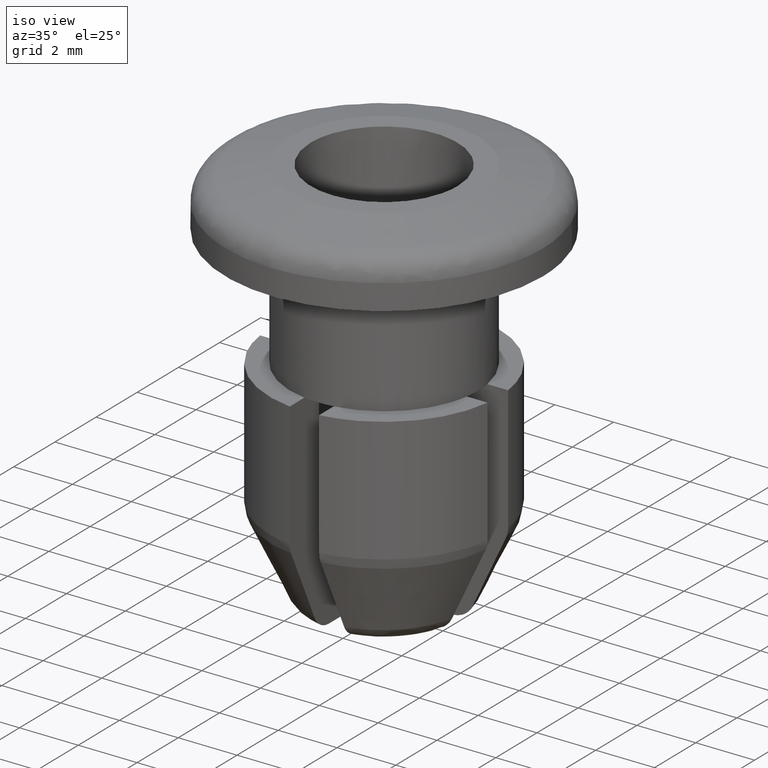
[diagram: clean part render]
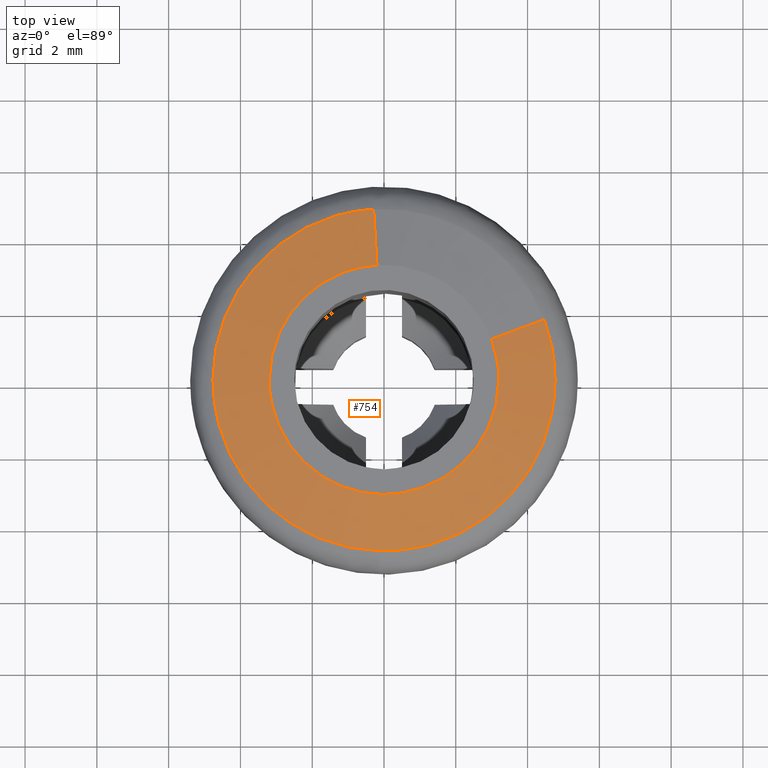
[diagram: tour spotlight — one face highlighted and labeled with its STEP entity id]
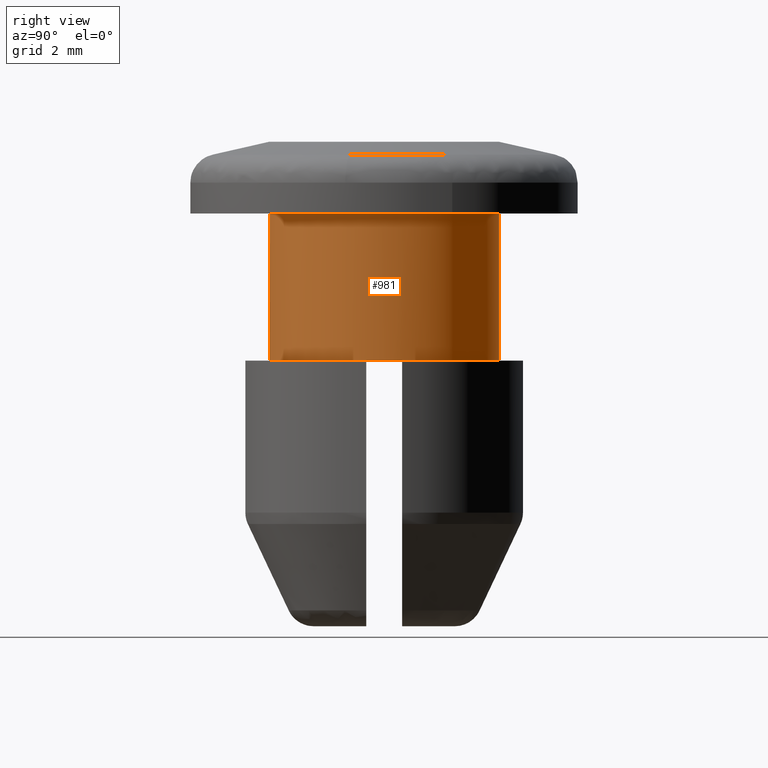
[diagram: tour spotlight — one face highlighted and labeled with its STEP entity id]
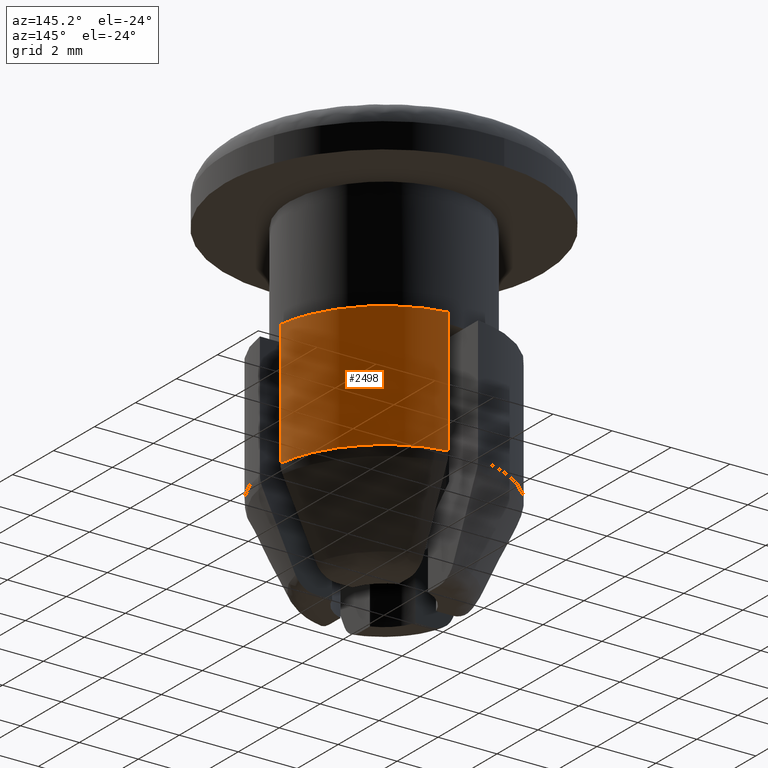
[diagram: tour spotlight — one face highlighted and labeled with its STEP entity id]
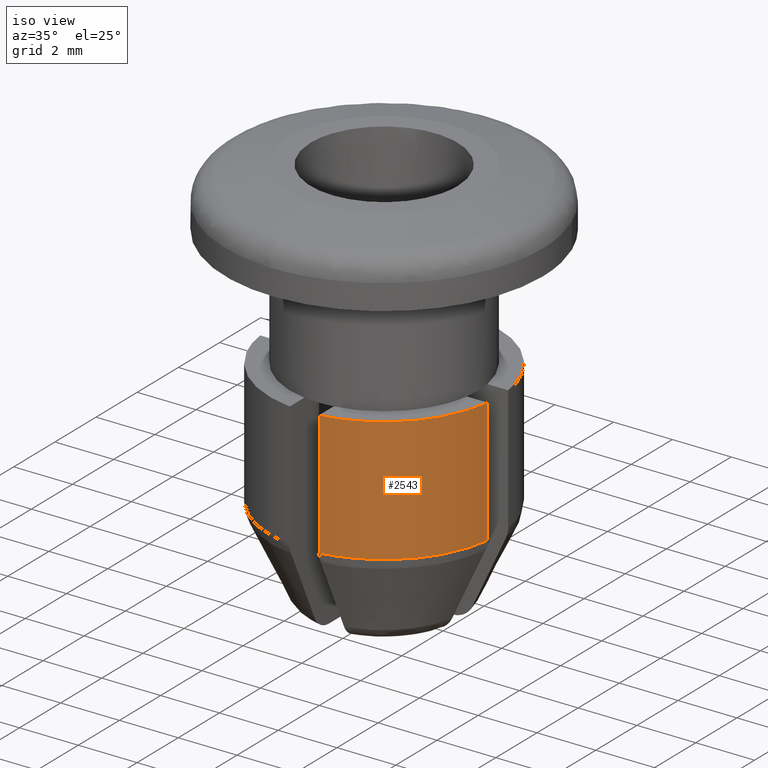
[diagram: tour spotlight — one face highlighted and labeled with its STEP entity id]
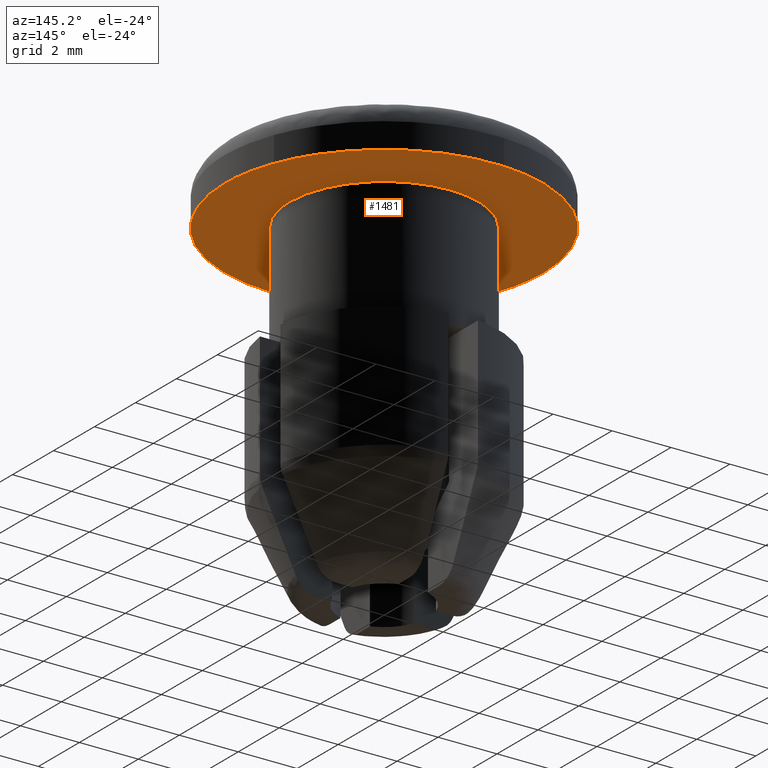
[diagram: tour spotlight — one face highlighted and labeled with its STEP entity id]
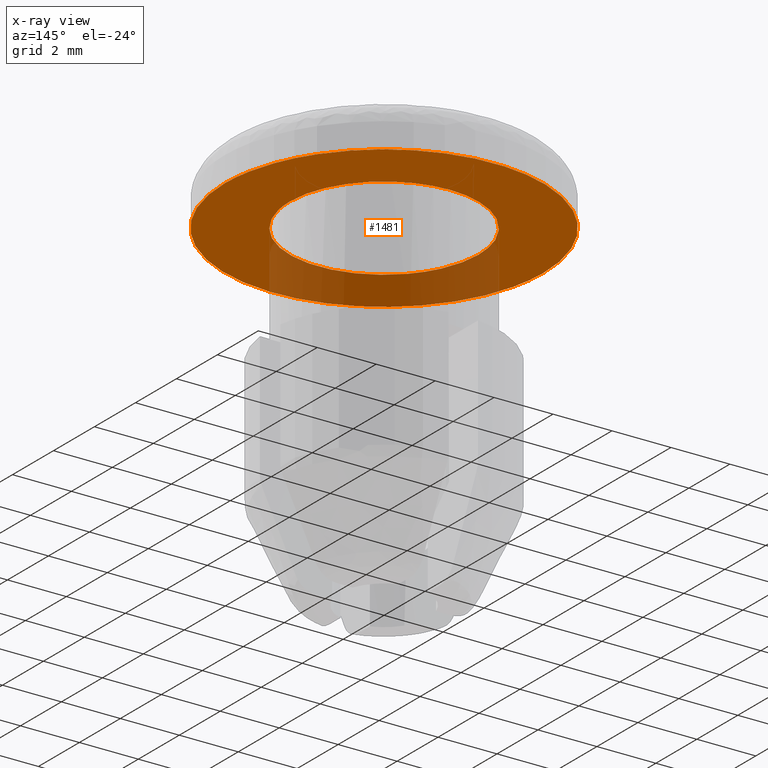
[diagram: x-ray of the same camera — body ghosted, this tour face saturated]
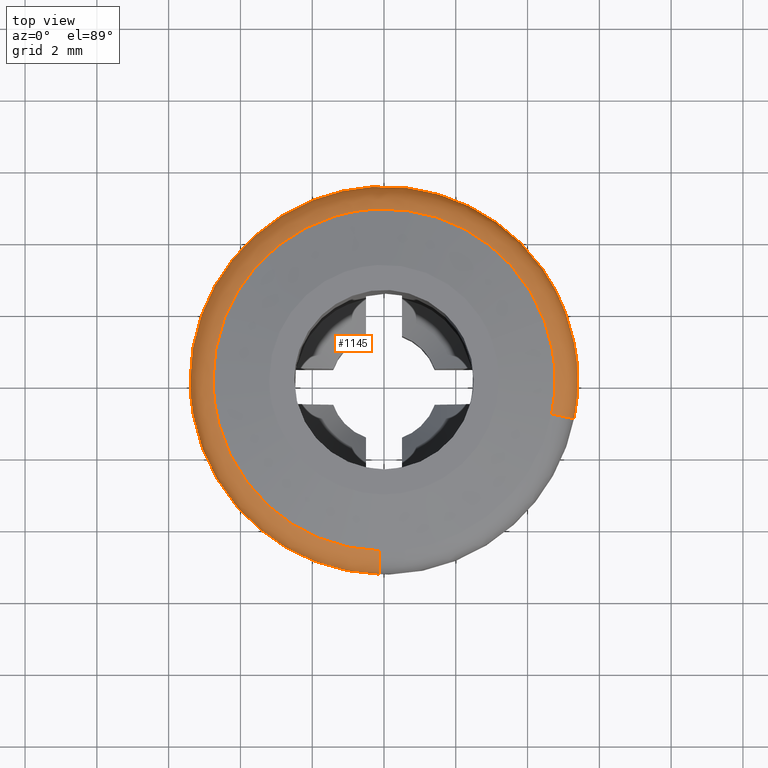
[diagram: tour spotlight — one face highlighted and labeled with its STEP entity id]
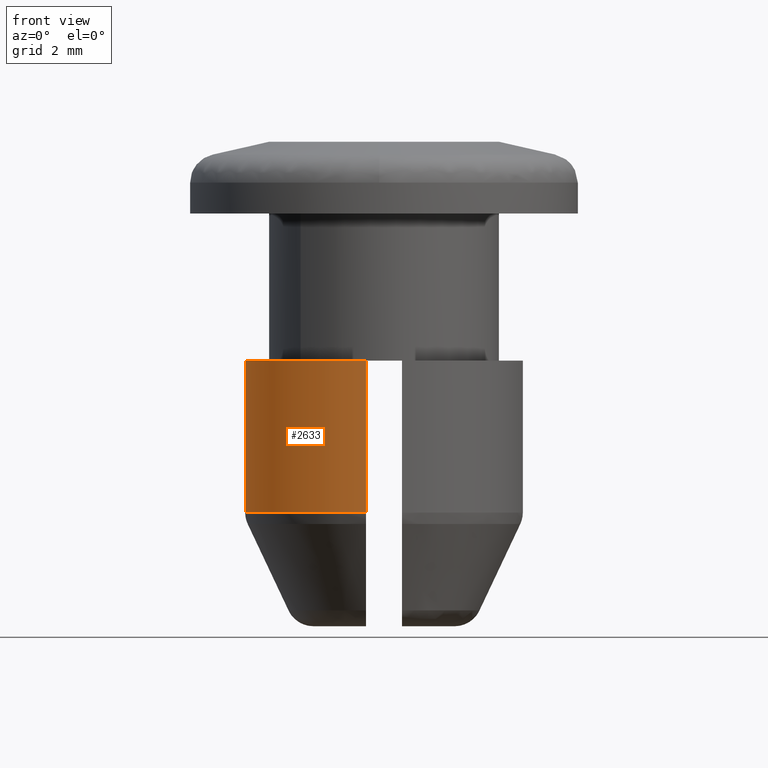
[diagram: tour spotlight — one face highlighted and labeled with its STEP entity id]
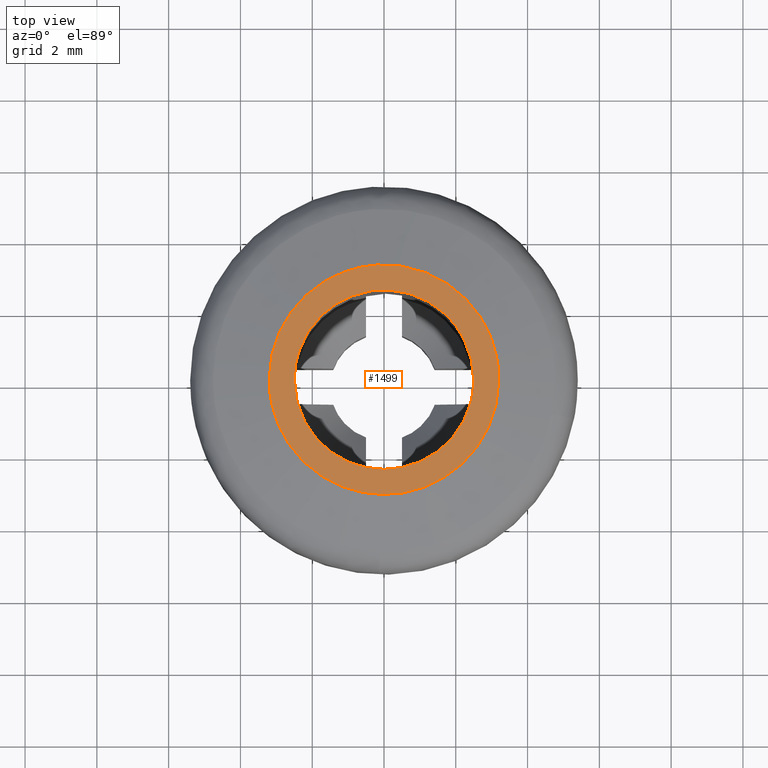
[diagram: tour spotlight — one face highlighted and labeled with its STEP entity id]
A machine part: a face-by-face anatomy tour. The part has 56 B-rep faces; the first image is the clean iso view, then the 8 largest visible faces are spotlighted one at a time (largest first), each with its STEP entity span.

Face 1 — top view, entity #754. In plain terms, the highlighted face is a freeform B-spline surface patch.
Definition (entity closure, byte-faithful):
#588=CARTESIAN_POINT('',(2.959032740807782,1.111420429589253,0.008905034524213));
#589=CARTESIAN_POINT('',(3.125991545662793,0.666911262059646,0.008905034524213));
#590=CARTESIAN_POINT('',(3.154979230995207,0.192966796288025,0.008905034524213));
#591=CARTESIAN_POINT('',(3.347946027283231,-2.962012434707182,0.008905034524213));
#592=CARTESIAN_POINT('',(0.192966796288025,-3.154979230995207,0.008905034524213));
#593=CARTESIAN_POINT('',(-2.962012434707182,-3.347946027283231,0.008905034524213));
#594=CARTESIAN_POINT('',(-3.154979230995207,-0.192966796288025,0.008905034524213));
#595=CARTESIAN_POINT('',(-3.347946027283231,2.962012434707182,0.008905034524213));
#596=CARTESIAN_POINT('',(-0.192966796288025,3.154979230995207,0.008905034524213));
#597=CARTESIAN_POINT('',(4.498270282245640,1.689562072279477,-0.365329041355827));
#598=CARTESIAN_POINT('',(4.752078163409377,1.013826940691061,-0.365329041355827));
#599=CARTESIAN_POINT('',(4.796144740194292,0.293344778931245,-0.365329041355827));
#600=CARTESIAN_POINT('',(5.089489519125537,-4.502799961263047,-0.365329041355827));
#601=CARTESIAN_POINT('',(0.293344778931245,-4.796144740194292,-0.365329041355827));
#602=CARTESIAN_POINT('',(-4.502799961263047,-5.089489519125537,-0.365329041355827));
#603=CARTESIAN_POINT('',(-4.796144740194292,-0.293344778931245,-0.365329041355827));
#604=CARTESIAN_POINT('',(-5.089489519125537,4.502799961263047,-0.365329041355827));
#605=CARTESIAN_POINT('',(-0.293344778931245,4.796144740194292,-0.365329041355827));
#613=(BOUNDED_SURFACE()B_SPLINE_SURFACE(2,1,((#588,#597),(#589,#598),(#590,#599),(#591,#600),(#592,#601),(#593,#602),(#594,#603),(#595,#604),(#596,#605)),.UNSPECIFIED.,.F.,.F.,.U.)B_SPLINE_SURFACE_WITH_KNOTS((3,2,2,2,3),(2,2),(0.0,1.592272467914259,9.553634807485555,17.514997147056850,25.476359486628141),(0.0,1.0),.UNSPECIFIED.)GEOMETRIC_REPRESENTATION_ITEM()RATIONAL_B_SPLINE_SURFACE(((0.906274169979695,0.906274169979695),(0.941421356237309,0.941421356237309),(1.0,1.0),(0.707106781186548,0.707106781186548),(1.0,1.0),(0.707106781186548,0.707106781186548),(1.0,1.0),(0.707106781186548,0.707106781186548),(1.0,1.0)))REPRESENTATION_ITEM('')SURFACE());
#614=CARTESIAN_POINT('',(4.460727903092842,1.675461056579439,-0.356201380946647));
#615=VERTEX_POINT('',#614);
#616=CARTESIAN_POINT('',(4.765004006035680,0.0,-0.356201380946426));
#617=VERTEX_POINT('',#616);
#618=CARTESIAN_POINT('',(4.460727903092843,1.675461056579439,-0.356201380946647));
#619=CARTESIAN_POINT('',(4.765004006035681,0.865359922143831,-0.356201380946426));
#620=CARTESIAN_POINT('',(4.765004006035680,0.0,-0.356201380946426));
#628=(BOUNDED_CURVE()B_SPLINE_CURVE(2,(#618,#619,#620),.UNSPECIFIED.,.F.,.U.)B_SPLINE_CURVE_WITH_KNOTS((3,3),(0.440284170898265,0.500000000000000),.UNSPECIFIED.)CURVE()GEOMETRIC_REPRESENTATION_ITEM()RATIONAL_B_SPLINE_CURVE((0.893499554634977,0.930038554401115,1.0))REPRESENTATION_ITEM(''));
#629=EDGE_CURVE('',#615,#617,#628,.T.);
#630=ORIENTED_EDGE('',*,*,#629,.F.);
#631=CARTESIAN_POINT('',(2.995659452080346,1.125177518071799,-4.458431E-013));
#632=VERTEX_POINT('',#631);
#633=CARTESIAN_POINT('',(2.995659452080346,1.125177518071799,-4.458431E-013));
#634=CARTESIAN_POINT('',(4.460727903092842,1.675461056579439,-0.356201380946647));
#635=QUASI_UNIFORM_CURVE('',1,(#633,#634),.UNSPECIFIED.,.F.,.U.);
#636=EDGE_CURVE('',#632,#615,#635,.T.);
#637=ORIENTED_EDGE('',*,*,#636,.F.);
#638=CARTESIAN_POINT('',(3.200000000000000,0.0,0.0));
#639=VERTEX_POINT('',#638);
#640=CARTESIAN_POINT('',(2.995659452080347,1.125177518071799,-4.458431E-013));
#641=CARTESIAN_POINT('',(3.200000000000001,0.581143635433585,0.0));
#642=CARTESIAN_POINT('',(3.200000000000000,0.0,0.0));
#650=(BOUNDED_CURVE()B_SPLINE_CURVE(2,(#640,#641,#642),.UNSPECIFIED.,.F.,.U.)B_SPLINE_CURVE_WITH_KNOTS((3,3),(0.440284170897003,0.500000000000000),.UNSPECIFIED.)CURVE()GEOMETRIC_REPRESENTATION_ITEM()RATIONAL_B_SPLINE_CURVE((0.893499554633432,0.930038554399636,1.0))REPRESENTATION_ITEM(''));
#651=EDGE_CURVE('',#632,#639,#650,.T.);
#652=ORIENTED_EDGE('',*,*,#651,.T.);
#653=CARTESIAN_POINT('',(-3.200000000000000,0.0,0.0));
#654=VERTEX_POINT('',#653);
#655=CARTESIAN_POINT('',(3.200000000000000,0.0,0.0));
#656=CARTESIAN_POINT('',(3.200000000000000,-3.200000000000000,0.0));
#657=CARTESIAN_POINT('',(0.0,-3.200000000000000,0.0));
#658=CARTESIAN_POINT('',(-3.200000000000000,-3.200000000000000,0.0));
#659=CARTESIAN_POINT('',(-3.200000000000000,0.0,0.0));
#667=(BOUNDED_CURVE()B_SPLINE_CURVE(2,(#655,#656,#657,#658,#659),.UNSPECIFIED.,.F.,.U.)B_SPLINE_CURVE_WITH_KNOTS((3,2,3),(0.500000000000000,0.750000000000000,1.0),.UNSPECIFIED.)CURVE()GEOMETRIC_REPRESENTATION_ITEM()RATIONAL_B_SPLINE_CURVE((1.0,0.707106781186548,1.0,0.707106781186548,1.0))REPRESENTATION_ITEM(''));
#668=EDGE_CURVE('',#639,#654,#667,.T.);
#669=ORIENTED_EDGE('',*,*,#668,.T.);
#670=CARTESIAN_POINT('',(-0.195355326522164,3.194031354950947,-3.685828E-013));
#671=VERTEX_POINT('',#670);
#672=CARTESIAN_POINT('',(-3.200000000000000,0.0,0.0));
#673=CARTESIAN_POINT('',(-3.199999999999999,3.010259414078350,0.0));
#674=CARTESIAN_POINT('',(-0.195355326522164,3.194031354950946,-3.685828E-013));
#682=(BOUNDED_CURVE()B_SPLINE_CURVE(2,(#672,#673,#674),.UNSPECIFIED.,.F.,.U.)B_SPLINE_CURVE_WITH_KNOTS((3,3),(0.0,0.239332962240831),.UNSPECIFIED.)CURVE()GEOMETRIC_REPRESENTATION_ITEM()RATIONAL_B_SPLINE_CURVE((1.0,0.719603993284498,0.976072041670765))REPRESENTATION_ITEM(''));
#683=EDGE_CURVE('',#654,#671,#682,.T.);
#684=ORIENTED_EDGE('',*,*,#683,.T.);
#685=CARTESIAN_POINT('',(-0.290896535451600,4.756116313044315,-0.356201380946615));
#686=VERTEX_POINT('',#685);
#687=CARTESIAN_POINT('',(-0.195355326522164,3.194031354950947,-3.685828E-013));
#688=CARTESIAN_POINT('',(-0.290896535451600,4.756116313044315,-0.356201380946615));
#689=QUASI_UNIFORM_CURVE('',1,(#687,#688),.UNSPECIFIED.,.F.,.U.);
#690=EDGE_CURVE('',#671,#686,#689,.T.);
#691=ORIENTED_EDGE('',*,*,#690,.T.);
#692=CARTESIAN_POINT('',(-4.765004006035680,0.0,-0.356201380946426));
#693=VERTEX_POINT('',#692);
#694=CARTESIAN_POINT('',(-4.765004006035680,0.0,-0.356201380946426));
#695=CARTESIAN_POINT('',(-4.765004006035679,4.482468177297642,-0.356201380946426));
#696=CARTESIAN_POINT('',(-0.290896535451600,4.756116313044315,-0.356201380946615));
#704=(BOUNDED_CURVE()B_SPLINE_CURVE(2,(#694,#695,#696),.UNSPECIFIED.,.F.,.U.)B_SPLINE_CURVE_WITH_KNOTS((3,3),(0.0,0.239332962241582),.UNSPECIFIED.)CURVE()GEOMETRIC_REPRESENTATION_ITEM()RATIONAL_B_SPLINE_CURVE((1.0,0.719603993283619,0.976072041672373))REPRESENTATION_ITEM(''));
#705=EDGE_CURVE('',#693,#686,#704,.T.);
#706=ORIENTED_EDGE('',*,*,#705,.F.);
#707=CARTESIAN_POINT('',(-0.122093203260431,-4.763439558580755,-0.356201380968509));
#708=VERTEX_POINT('',#707);
#709=CARTESIAN_POINT('',(-0.122093203260431,-4.763439558580755,-0.356201380968509));
#710=CARTESIAN_POINT('',(-4.765004006035681,-4.644435665290682,-0.356201380946426));
#711=CARTESIAN_POINT('',(-4.765004006035680,0.0,-0.356201380946426));
#719=(BOUNDED_CURVE()B_SPLINE_CURVE(2,(#709,#710,#711),.UNSPECIFIED.,.F.,.U.)B_SPLINE_CURVE_WITH_KNOTS((3,3),(0.754506356912865,1.0),.UNSPECIFIED.)CURVE()GEOMETRIC_REPRESENTATION_ITEM()RATIONAL_B_SPLINE_CURVE((0.989631280360132,0.712386306711872,1.0))REPRESENTATION_ITEM(''));
#720=EDGE_CURVE('',#708,#693,#719,.T.);
#721=ORIENTED_EDGE('',*,*,#720,.F.);
#722=CARTESIAN_POINT('',(4.669013250028817,-0.951618857221096,-0.356201380964727));
#723=VERTEX_POINT('',#722);
#724=CARTESIAN_POINT('',(4.669013250028818,-0.951618857221096,-0.356201380964728));
#725=CARTESIAN_POINT('',(3.891784952833663,-4.765004006035682,-0.356201380946426));
#726=CARTESIAN_POINT('',(0.0,-4.765004006035680,-0.356201380946426));
#727=CARTESIAN_POINT('',(-0.061056624700152,-4.765004006035680,-0.356201380946426));
#728=CARTESIAN_POINT('',(-0.122093203260431,-4.763439558580755,-0.356201380968509));
#736=(BOUNDED_CURVE()B_SPLINE_CURVE(2,(#724,#725,#726,#727,#728),.UNSPECIFIED.,.F.,.U.)B_SPLINE_CURVE_WITH_KNOTS((3,2,3),(0.534232961491520,0.750000000000000,0.754506356912864),.UNSPECIFIED.)CURVE()GEOMETRIC_REPRESENTATION_ITEM()RATIONAL_B_SPLINE_CURVE((0.930770871026441,0.747213190309620,1.0,0.994720474474676,0.989631280360134))REPRESENTATION_ITEM(''));
#737=EDGE_CURVE('',#723,#708,#736,.T.);
#738=ORIENTED_EDGE('',*,*,#737,.F.);
#739=CARTESIAN_POINT('',(4.765004006035680,0.0,-0.356201380946426));
#740=CARTESIAN_POINT('',(4.765004006035679,-0.480650770906381,-0.356201380946426));
#741=CARTESIAN_POINT('',(4.669013250028817,-0.951618857221096,-0.356201380964728));
#749=(BOUNDED_CURVE()B_SPLINE_CURVE(2,(#739,#740,#741),.UNSPECIFIED.,.F.,.U.)B_SPLINE_CURVE_WITH_KNOTS((3,3),(0.500000000000000,0.534232961491520),.UNSPECIFIED.)CURVE()GEOMETRIC_REPRESENTATION_ITEM()RATIONAL_B_SPLINE_CURVE((1.0,0.959893590876926,0.930770871026440))REPRESENTATION_ITEM(''));
#750=EDGE_CURVE('',#617,#723,#749,.T.);
#751=ORIENTED_EDGE('',*,*,#750,.F.);
#752=EDGE_LOOP('',(#630,#637,#652,#669,#684,#691,#706,#721,#738,#751));
#753=FACE_OUTER_BOUND('',#752,.T.);
#754=ADVANCED_FACE('',(#753),#613,.T.);

Face 2 — right view, entity #981. In plain terms, the highlighted face is a freeform B-spline surface patch.
Definition (entity closure, byte-faithful):
#804=CARTESIAN_POINT('',(-2.321609333131504,-2.202301093019909,-6.202500000000001));
#805=CARTESIAN_POINT('',(-0.119308240111595,-4.523910426151414,-6.202500000000001));
#806=CARTESIAN_POINT('',(2.202301093019909,-2.321609333131504,-6.202500000000001));
#807=CARTESIAN_POINT('',(4.523910426151414,-0.119308240111595,-6.202500000000001));
#808=CARTESIAN_POINT('',(2.321609333131504,2.202301093019909,-6.202500000000001));
#809=CARTESIAN_POINT('',(0.119308240111595,4.523910426151414,-6.202500000000001));
#810=CARTESIAN_POINT('',(-2.202301093019909,2.321609333131504,-6.202500000000001));
#811=CARTESIAN_POINT('',(-2.321609333131504,-2.202301093019909,-1.894937499999999));
#812=CARTESIAN_POINT('',(-0.119308240111595,-4.523910426151414,-1.894937499999999));
#813=CARTESIAN_POINT('',(2.202301093019909,-2.321609333131504,-1.894937499999999));
#814=CARTESIAN_POINT('',(4.523910426151414,-0.119308240111595,-1.894937499999999));
#815=CARTESIAN_POINT('',(2.321609333131504,2.202301093019909,-1.894937499999999));
#816=CARTESIAN_POINT('',(0.119308240111595,4.523910426151414,-1.894937499999999));
#817=CARTESIAN_POINT('',(-2.202301093019909,2.321609333131504,-1.894937499999999));
#825=(BOUNDED_SURFACE()B_SPLINE_SURFACE(2,1,((#804,#811),(#805,#812),(#806,#813),(#807,#814),(#808,#815),(#809,#816),(#810,#817)),.UNSPECIFIED.,.F.,.F.,.U.)B_SPLINE_SURFACE_WITH_KNOTS((3,2,2,3),(2,2),(0.0,5.301933598375615,10.603867196751230,15.905800795126851),(0.0,4.307562500000002),.UNSPECIFIED.)GEOMETRIC_REPRESENTATION_ITEM()RATIONAL_B_SPLINE_SURFACE(((1.0,1.0),(0.707106781186548,0.707106781186548),(1.0,1.0),(0.707106781186548,0.707106781186548),(1.0,1.0),(0.707106781186548,0.707106781186548),(1.0,1.0)))REPRESENTATION_ITEM('')SURFACE());
#826=CARTESIAN_POINT('',(-2.321609453257532,-2.202300966386118,-2.0));
#827=VERTEX_POINT('',#826);
#828=CARTESIAN_POINT('',(3.200000000000000,0.0,-2.0));
#829=VERTEX_POINT('',#828);
#830=CARTESIAN_POINT('',(-2.321609453257533,-2.202300966386118,-2.000000000000000));
#831=CARTESIAN_POINT('',(-1.375182696261689,-3.199999999999999,-2.000000000000000));
#832=CARTESIAN_POINT('',(0.0,-3.200000000000000,-2.0));
#833=CARTESIAN_POINT('',(3.200000000000000,-3.200000000000000,-2.000000000000000));
#834=CARTESIAN_POINT('',(3.200000000000000,0.0,-2.0));
#842=(BOUNDED_CURVE()B_SPLINE_CURVE(2,(#830,#831,#832,#833,#834),.UNSPECIFIED.,.F.,.U.)B_SPLINE_CURVE_WITH_KNOTS((3,2,3),(0.121021325173780,0.250000000000000,0.500000000000000),.UNSPECIFIED.)CURVE()GEOMETRIC_REPRESENTATION_ITEM()RATIONAL_B_SPLINE_CURVE((0.853701757207920,0.848892083087419,1.0,0.707106781186548,1.0))REPRESENTATION_ITEM(''));
#843=EDGE_CURVE('',#827,#829,#842,.T.);
#844=ORIENTED_EDGE('',*,*,#843,.F.);
#845=CARTESIAN_POINT('',(-2.321609423222823,-2.202300998047945,-6.099999999999911));
#846=VERTEX_POINT('',#845);
#847=CARTESIAN_POINT('',(-2.321609423222823,-2.202300998047945,-6.099999999999911));
#848=CARTESIAN_POINT('',(-2.321609453257532,-2.202300966386118,-2.0));
#849=QUASI_UNIFORM_CURVE('',1,(#847,#848),.UNSPECIFIED.,.F.,.U.);
#850=EDGE_CURVE('',#846,#827,#849,.T.);
#851=ORIENTED_EDGE('',*,*,#850,.F.);
#852=CARTESIAN_POINT('',(-0.500000000000011,-3.160696125855820,-6.100000000000001));
#853=VERTEX_POINT('',#852);
#854=CARTESIAN_POINT('',(-2.321609423222822,-2.202300998047945,-6.099999999999911));
#855=CARTESIAN_POINT('',(-1.573570263137163,-2.990864825979360,-6.099999999999946));
#856=CARTESIAN_POINT('',(-0.500000000000011,-3.160696125855820,-6.100000000000001));
#864=(BOUNDED_CURVE()B_SPLINE_CURVE(2,(#854,#855,#856),.UNSPECIFIED.,.F.,.U.)B_SPLINE_CURVE_WITH_KNOTS((3,3),(0.479718116204390,1.0),.UNSPECIFIED.)CURVE()GEOMETRIC_REPRESENTATION_ITEM()RATIONAL_B_SPLINE_CURVE((0.904610816140017,0.900577880386593,1.0))REPRESENTATION_ITEM(''));
#865=EDGE_CURVE('',#846,#853,#864,.T.);
#866=ORIENTED_EDGE('',*,*,#865,.T.);
#867=CARTESIAN_POINT('',(0.500000000000000,-3.160696125855820,-6.100000000000001));
#868=VERTEX_POINT('',#867);
#869=CARTESIAN_POINT('',(-0.500000000000011,-3.160696125855820,-6.100000000000001));
#870=CARTESIAN_POINT('',(-4.987330E-015,-3.239792625501865,-6.099999999999881));
#871=CARTESIAN_POINT('',(0.500000000000000,-3.160696125855820,-6.100000000000001));
#879=(BOUNDED_CURVE()B_SPLINE_CURVE(2,(#869,#870,#871),.UNSPECIFIED.,.F.,.U.)CURVE()GEOMETRIC_REPRESENTATION_ITEM()QUASI_UNIFORM_CURVE()RATIONAL_B_SPLINE_CURVE((1.0,0.987717539329944,1.0))REPRESENTATION_ITEM(''));
#880=EDGE_CURVE('',#853,#868,#879,.T.);
#881=ORIENTED_EDGE('',*,*,#880,.T.);
#882=CARTESIAN_POINT('',(3.160696125855820,-0.500000000000011,-6.099999999999881));
#883=VERTEX_POINT('',#882);
#884=CARTESIAN_POINT('',(0.500000000000000,-3.160696125855820,-6.100000000000001));
#885=CARTESIAN_POINT('',(2.797282169277570,-2.797282169277581,-6.099999999999882));
#886=CARTESIAN_POINT('',(3.160696125855820,-0.500000000000011,-6.099999999999881));
#894=(BOUNDED_CURVE()B_SPLINE_CURVE(2,(#884,#885,#886),.UNSPECIFIED.,.F.,.U.)CURVE()GEOMETRIC_REPRESENTATION_ITEM()QUASI_UNIFORM_CURVE()RATIONAL_B_SPLINE_CURVE((1.0,0.808907204517493,1.0))REPRESENTATION_ITEM(''));
#895=EDGE_CURVE('',#868,#883,#894,.T.);
#896=ORIENTED_EDGE('',*,*,#895,.T.);
#897=CARTESIAN_POINT('',(3.160696125855820,0.500000000000000,-6.099999999999881));
#898=VERTEX_POINT('',#897);
#899=CARTESIAN_POINT('',(3.160696125855820,-0.500000000000012,-6.099999999999881));
#900=CARTESIAN_POINT('',(3.239792625501865,-6.179952E-015,-6.099999999999881));
#901=CARTESIAN_POINT('',(3.160696125855822,0.499999999999999,-6.099999999999881));
#909=(BOUNDED_CURVE()B_SPLINE_CURVE(2,(#899,#900,#901),.UNSPECIFIED.,.F.,.U.)CURVE()GEOMETRIC_REPRESENTATION_ITEM()QUASI_UNIFORM_CURVE()RATIONAL_B_SPLINE_CURVE((1.0,0.987717539329944,1.0))REPRESENTATION_ITEM(''));
#910=EDGE_CURVE('',#883,#898,#909,.T.);
#911=ORIENTED_EDGE('',*,*,#910,.T.);
#912=CARTESIAN_POINT('',(0.500000000000000,3.160696125855820,-6.100000000000001));
#913=VERTEX_POINT('',#912);
#914=CARTESIAN_POINT('',(3.160696125855822,0.499999999999999,-6.099999999999881));
#915=CARTESIAN_POINT('',(2.797282169277580,2.797282169277579,-6.099999999999882));
#916=CARTESIAN_POINT('',(0.500000000000000,3.160696125855820,-6.100000000000001));
#924=(BOUNDED_CURVE()B_SPLINE_CURVE(2,(#914,#915,#916),.UNSPECIFIED.,.F.,.U.)CURVE()GEOMETRIC_REPRESENTATION_ITEM()QUASI_UNIFORM_CURVE()RATIONAL_B_SPLINE_CURVE((1.0,0.808907204517492,1.0))REPRESENTATION_ITEM(''));
#925=EDGE_CURVE('',#898,#913,#924,.T.);
#926=ORIENTED_EDGE('',*,*,#925,.T.);
#927=CARTESIAN_POINT('',(-0.500000000000011,3.160696125855820,-6.100000000000001));
#928=VERTEX_POINT('',#927);
#929=CARTESIAN_POINT('',(0.500000000000000,3.160696125855820,-6.100000000000001));
#930=CARTESIAN_POINT('',(-6.830474E-015,3.239792625501865,-6.099999999999881));
#931=CARTESIAN_POINT('',(-0.500000000000011,3.160696125855820,-6.100000000000001));
#939=(BOUNDED_CURVE()B_SPLINE_CURVE(2,(#929,#930,#931),.UNSPECIFIED.,.F.,.U.)CURVE()GEOMETRIC_REPRESENTATION_ITEM()QUASI_UNIFORM_CURVE()RATIONAL_B_SPLINE_CURVE((1.0,0.987717539329944,1.0))REPRESENTATION_ITEM(''));
#940=EDGE_CURVE('',#913,#928,#939,.T.);
#941=ORIENTED_EDGE('',*,*,#940,.T.);
#942=CARTESIAN_POINT('',(-2.202300998047945,2.321609423222822,-6.099999999999917));
#943=VERTEX_POINT('',#942);
#944=CARTESIAN_POINT('',(-0.500000000000011,3.160696125855820,-6.100000000000001));
#945=CARTESIAN_POINT('',(-1.481422092002840,3.005442021550380,-6.099999999999950));
#946=CARTESIAN_POINT('',(-2.202300998047945,2.321609423222822,-6.099999999999918));
#954=(BOUNDED_CURVE()B_SPLINE_CURVE(2,(#944,#945,#946),.UNSPECIFIED.,.F.,.U.)B_SPLINE_CURVE_WITH_KNOTS((3,3),(0.0,0.479718116204389),.UNSPECIFIED.)CURVE()GEOMETRIC_REPRESENTATION_ITEM()RATIONAL_B_SPLINE_CURVE((1.0,0.908329324130901,0.904610816140017))REPRESENTATION_ITEM(''));
#955=EDGE_CURVE('',#928,#943,#954,.T.);
#956=ORIENTED_EDGE('',*,*,#955,.T.);
#957=CARTESIAN_POINT('',(-2.202301032864988,2.321609390195043,-1.999999999999999));
#958=VERTEX_POINT('',#957);
#959=CARTESIAN_POINT('',(-2.202300998047945,2.321609423222822,-6.099999999999917));
#960=CARTESIAN_POINT('',(-2.202301032864988,2.321609390195043,-1.999999999999999));
#961=QUASI_UNIFORM_CURVE('',1,(#959,#960),.UNSPECIFIED.,.F.,.U.);
#962=EDGE_CURVE('',#943,#958,#961,.T.);
#963=ORIENTED_EDGE('',*,*,#962,.T.);
#964=CARTESIAN_POINT('',(3.200000000000000,0.0,-2.0));
#965=CARTESIAN_POINT('',(3.200000000000000,3.200000000000000,-2.000000000000000));
#966=CARTESIAN_POINT('',(0.0,3.200000000000000,-2.0));
#967=CARTESIAN_POINT('',(-1.276324082676867,3.200000000000000,-2.000000000000000));
#968=CARTESIAN_POINT('',(-2.202301032864988,2.321609390195043,-2.000000000000000));
#976=(BOUNDED_CURVE()B_SPLINE_CURVE(2,(#964,#965,#966,#967,#968),.UNSPECIFIED.,.F.,.U.)B_SPLINE_CURVE_WITH_KNOTS((3,2,3),(0.500000000000000,0.750000000000000,0.871021333816604),.UNSPECIFIED.)CURVE()GEOMETRIC_REPRESENTATION_ITEM()RATIONAL_B_SPLINE_CURVE((1.0,0.707106781186548,1.0,0.858214687973431,0.853701756563331))REPRESENTATION_ITEM(''));
#977=EDGE_CURVE('',#829,#958,#976,.T.);
#978=ORIENTED_EDGE('',*,*,#977,.F.);
#979=EDGE_LOOP('',(#844,#851,#866,#881,#896,#911,#926,#941,#956,#963,#978));
#980=FACE_OUTER_BOUND('',#979,.T.);
#981=ADVANCED_FACE('',(#980),#825,.T.);

Face 3 — auxiliary view, entity #2498. In plain terms, the highlighted face is a freeform B-spline surface patch.
Definition (entity closure, byte-faithful):
#2230=CARTESIAN_POINT('',(3.867815921162755,0.500000000000000,-10.333900000000000));
#2231=VERTEX_POINT('',#2230);
#2242=CARTESIAN_POINT('',(0.500000000000000,3.867815921162760,-10.333900000000000));
#2243=VERTEX_POINT('',#2242);
#2256=CARTESIAN_POINT('',(0.499999999999998,3.867815921162744,-10.333900000000000));
#2257=CARTESIAN_POINT('',(3.482289609849445,3.482289609849446,-10.333900000000000));
#2258=CARTESIAN_POINT('',(3.867815921162743,0.499999999999999,-10.333900000000000));
#2266=(BOUNDED_CURVE()B_SPLINE_CURVE(2,(#2256,#2257,#2258),.UNSPECIFIED.,.F.,.U.)CURVE()GEOMETRIC_REPRESENTATION_ITEM()QUASI_UNIFORM_CURVE()RATIONAL_B_SPLINE_CURVE((1.0,0.791926219699677,1.0))REPRESENTATION_ITEM(''));
#2267=EDGE_CURVE('',#2243,#2231,#2266,.T.);
#2454=CARTESIAN_POINT('',(3.884353047075144,0.349000581200143,-5.994152499999897));
#2455=CARTESIAN_POINT('',(3.884353047075144,0.349000581200143,-10.442393687500010));
#2456=CARTESIAN_POINT('',(3.586371146354920,3.665519138434481,-5.994152499999896));
#2457=CARTESIAN_POINT('',(3.586371146354920,3.665519138434481,-10.442393687500005));
#2458=CARTESIAN_POINT('',(0.264138964030749,3.891044924911657,-5.994152499999897));
#2459=CARTESIAN_POINT('',(0.264138964030749,3.891044924911657,-10.442393687499999));
#2467=(BOUNDED_SURFACE()B_SPLINE_SURFACE(1,2,((#2454,#2456,#2458),(#2455,#2457,#2459)),.UNSPECIFIED.,.F.,.F.,.U.)B_SPLINE_SURFACE_WITH_KNOTS((2,2),(3,3),(0.0,4.448241187500107),(0.0,5.753764371168079),.UNSPECIFIED.)GEOMETRIC_REPRESENTATION_ITEM()RATIONAL_B_SPLINE_SURFACE(((1.0,0.758018902936983,0.993470649676024),(1.0,0.758018902936983,0.993470649676024)))REPRESENTATION_ITEM('')SURFACE());
#2468=CARTESIAN_POINT('',(3.867815921162740,0.500000000000000,-6.099999999999901));
#2469=VERTEX_POINT('',#2468);
#2470=CARTESIAN_POINT('',(3.867815921162755,0.500000000000000,-10.333900000000000));
#2471=CARTESIAN_POINT('',(3.867815921162740,0.500000000000000,-6.099999999999901));
#2472=QUASI_UNIFORM_CURVE('',1,(#2470,#2471),.UNSPECIFIED.,.F.,.U.);
#2473=EDGE_CURVE('',#2231,#2469,#2472,.T.);
#2474=ORIENTED_EDGE('',*,*,#2473,.F.);
#2475=ORIENTED_EDGE('',*,*,#2267,.F.);
#2476=CARTESIAN_POINT('',(0.500000000000000,3.867815921162740,-6.099999999999901));
#2477=VERTEX_POINT('',#2476);
#2478=CARTESIAN_POINT('',(0.500000000000000,3.867815921162740,-6.099999999999901));
#2479=CARTESIAN_POINT('',(0.500000000000000,3.867815921162760,-10.333900000000000));
#2480=QUASI_UNIFORM_CURVE('',1,(#2478,#2479),.UNSPECIFIED.,.F.,.U.);
#2481=EDGE_CURVE('',#2477,#2243,#2480,.T.);
#2482=ORIENTED_EDGE('',*,*,#2481,.F.);
#2483=CARTESIAN_POINT('',(0.500000000000001,3.867815921162743,-6.099999999999901));
#2484=CARTESIAN_POINT('',(3.482289609849445,3.482289609849444,-6.099999999999902));
#2485=CARTESIAN_POINT('',(3.867815921162743,0.500000000000001,-6.099999999999901));
#2493=(BOUNDED_CURVE()B_SPLINE_CURVE(2,(#2483,#2484,#2485),.UNSPECIFIED.,.F.,.U.)CURVE()GEOMETRIC_REPRESENTATION_ITEM()QUASI_UNIFORM_CURVE()RATIONAL_B_SPLINE_CURVE((1.0,0.791926219699678,1.0))REPRESENTATION_ITEM(''));
#2494=EDGE_CURVE('',#2477,#2469,#2493,.T.);
#2495=ORIENTED_EDGE('',*,*,#2494,.T.);
#2496=EDGE_LOOP('',(#2474,#2475,#2482,#2495));
#2497=FACE_OUTER_BOUND('',#2496,.T.);
#2498=ADVANCED_FACE('',(#2497),#2467,.T.);

Face 4 — iso view, entity #2543. In plain terms, the highlighted face is a freeform B-spline surface patch.
Definition (entity closure, byte-faithful):
#2289=CARTESIAN_POINT('',(3.867815921162795,-0.500000000000011,-10.333900000000000));
#2290=VERTEX_POINT('',#2289);
#2300=CARTESIAN_POINT('',(0.500000000000000,-3.867815921162755,-10.333900000000000));
#2301=VERTEX_POINT('',#2300);
#2302=CARTESIAN_POINT('',(3.867815921162795,-0.500000000000011,-10.333900000000000));
#2303=CARTESIAN_POINT('',(3.482289609849441,-3.482289609849445,-10.333900000000000));
#2304=CARTESIAN_POINT('',(0.499999999999999,-3.867815921162743,-10.333900000000000));
#2312=(BOUNDED_CURVE()B_SPLINE_CURVE(2,(#2302,#2303,#2304),.UNSPECIFIED.,.F.,.U.)CURVE()GEOMETRIC_REPRESENTATION_ITEM()QUASI_UNIFORM_CURVE()RATIONAL_B_SPLINE_CURVE((1.0,0.791926219699678,1.0))REPRESENTATION_ITEM(''));
#2313=EDGE_CURVE('',#2290,#2301,#2312,.T.);
#2499=CARTESIAN_POINT('',(0.466228328594885,-3.872031914333301,-5.994152499999897));
#2500=CARTESIAN_POINT('',(0.466228328594885,-3.872031914333301,-10.442393687500010));
#2501=CARTESIAN_POINT('',(3.658085122626396,-3.487702938973662,-5.994152499999898));
#2502=CARTESIAN_POINT('',(3.658085122626396,-3.487702938973662,-10.442393687500005));
#2503=CARTESIAN_POINT('',(3.889852341281740,-0.281156118597750,-5.994152499999897));
#2504=CARTESIAN_POINT('',(3.889852341281740,-0.281156118597750,-10.442393687500010));
#2512=(BOUNDED_SURFACE()B_SPLINE_SURFACE(1,2,((#2499,#2501,#2503),(#2500,#2502,#2504)),.UNSPECIFIED.,.F.,.F.,.U.)B_SPLINE_SURFACE_WITH_KNOTS((2,2),(3,3),(0.0,4.448241187500107),(0.0,5.600972310600131),.UNSPECIFIED.)GEOMETRIC_REPRESENTATION_ITEM()RATIONAL_B_SPLINE_SURFACE(((1.0,0.771624583387720,1.0),(1.0,0.771624583387720,1.0)))REPRESENTATION_ITEM('')SURFACE());
#2513=CARTESIAN_POINT('',(3.867815921162740,-0.500000000000011,-6.099999999999901));
#2514=VERTEX_POINT('',#2513);
#2515=CARTESIAN_POINT('',(3.867815921162740,-0.500000000000011,-6.099999999999901));
#2516=CARTESIAN_POINT('',(3.867815921162795,-0.500000000000011,-10.333900000000000));
#2517=QUASI_UNIFORM_CURVE('',1,(#2515,#2516),.UNSPECIFIED.,.F.,.U.);
#2518=EDGE_CURVE('',#2514,#2290,#2517,.T.);
#2519=ORIENTED_EDGE('',*,*,#2518,.F.);
#2520=CARTESIAN_POINT('',(0.500000000000000,-3.867815921162740,-6.099999999999901));
#2521=VERTEX_POINT('',#2520);
#2522=CARTESIAN_POINT('',(3.867815921162742,-0.500000000000010,-6.099999999999901));
#2523=CARTESIAN_POINT('',(3.482289609849437,-3.482289609849444,-6.099999999999899));
#2524=CARTESIAN_POINT('',(0.500000000000003,-3.867815921162743,-6.099999999999901));
#2532=(BOUNDED_CURVE()B_SPLINE_CURVE(2,(#2522,#2523,#2524),.UNSPECIFIED.,.F.,.U.)CURVE()GEOMETRIC_REPRESENTATION_ITEM()QUASI_UNIFORM_CURVE()RATIONAL_B_SPLINE_CURVE((1.0,0.791926219699678,1.0))REPRESENTATION_ITEM(''));
#2533=EDGE_CURVE('',#2514,#2521,#2532,.T.);
#2534=ORIENTED_EDGE('',*,*,#2533,.T.);
#2535=CARTESIAN_POINT('',(0.500000000000000,-3.867815921162755,-10.333900000000000));
#2536=CARTESIAN_POINT('',(0.500000000000000,-3.867815921162740,-6.099999999999901));
#2537=QUASI_UNIFORM_CURVE('',1,(#2535,#2536),.UNSPECIFIED.,.F.,.U.);
#2538=EDGE_CURVE('',#2301,#2521,#2537,.T.);
#2539=ORIENTED_EDGE('',*,*,#2538,.F.);
#2540=ORIENTED_EDGE('',*,*,#2313,.F.);
#2541=EDGE_LOOP('',(#2519,#2534,#2539,#2540));
#2542=FACE_OUTER_BOUND('',#2541,.T.);
#2543=ADVANCED_FACE('',(#2542),#2512,.T.);

Face 5 — auxiliary view, entity #1481. An x-ray twin of the same camera follows (body ghosted, this face saturated) — the face is partly hidden behind the body. In plain terms, the highlighted face is a freeform B-spline surface patch.
Definition (entity closure, byte-faithful):
#398=CARTESIAN_POINT('',(5.055175482556152,1.898736643287578,-2.000000000000003));
#399=VERTEX_POINT('',#398);
#400=CARTESIAN_POINT('',(5.400000000000000,0.0,-2.0));
#401=VERTEX_POINT('',#400);
#402=CARTESIAN_POINT('',(5.055175482556152,1.898736643287578,-2.000000000000003));
#403=CARTESIAN_POINT('',(5.400000000000000,0.980679423050211,-2.000000000000000));
#404=CARTESIAN_POINT('',(5.400000000000000,0.0,-2.0));
#412=(BOUNDED_CURVE()B_SPLINE_CURVE(2,(#402,#403,#404),.UNSPECIFIED.,.F.,.U.)B_SPLINE_CURVE_WITH_KNOTS((3,3),(0.440284197046563,0.500000000000000),.UNSPECIFIED.)CURVE()GEOMETRIC_REPRESENTATION_ITEM()RATIONAL_B_SPLINE_CURVE((0.893499586634294,0.930038585035752,1.0))REPRESENTATION_ITEM(''));
#413=EDGE_CURVE('',#399,#401,#412,.T.);
#499=CARTESIAN_POINT('',(-0.329657680015346,5.389928182637238,-2.000000000000011));
#500=VERTEX_POINT('',#499);
#506=CARTESIAN_POINT('',(-5.400000000000000,0.0,-2.0));
#507=VERTEX_POINT('',#506);
#508=CARTESIAN_POINT('',(-5.400000000000000,0.0,-2.0));
#509=CARTESIAN_POINT('',(-5.400000000000000,5.079816947488635,-2.000000000000000));
#510=CARTESIAN_POINT('',(-0.329657680015346,5.389928182637238,-2.000000000000011));
#518=(BOUNDED_CURVE()B_SPLINE_CURVE(2,(#508,#509,#510),.UNSPECIFIED.,.F.,.U.)B_SPLINE_CURVE_WITH_KNOTS((3,3),(0.0,0.239333104169951),.UNSPECIFIED.)CURVE()GEOMETRIC_REPRESENTATION_ITEM()RATIONAL_B_SPLINE_CURVE((1.0,0.719603827004191,0.976072345852074))REPRESENTATION_ITEM(''));
#519=EDGE_CURVE('',#507,#500,#518,.T.);
#521=CARTESIAN_POINT('',(5.400000000000000,0.0,-2.0));
#522=CARTESIAN_POINT('',(5.400000000000000,-5.400000000000000,-2.000000000000000));
#523=CARTESIAN_POINT('',(0.0,-5.400000000000000,-2.0));
#524=CARTESIAN_POINT('',(-5.400000000000000,-5.400000000000000,-2.000000000000000));
#525=CARTESIAN_POINT('',(-5.400000000000000,0.0,-2.0));
#533=(BOUNDED_CURVE()B_SPLINE_CURVE(2,(#521,#522,#523,#524,#525),.UNSPECIFIED.,.F.,.U.)B_SPLINE_CURVE_WITH_KNOTS((3,2,3),(0.500000000000000,0.750000000000000,1.0),.UNSPECIFIED.)CURVE()GEOMETRIC_REPRESENTATION_ITEM()RATIONAL_B_SPLINE_CURVE((1.0,0.707106781186548,1.0,0.707106781186548,1.0))REPRESENTATION_ITEM(''));
#534=EDGE_CURVE('',#401,#507,#533,.T.);
#553=CARTESIAN_POINT('',(-0.329657680015346,5.389928182637238,-2.000000000000011));
#554=CARTESIAN_POINT('',(-0.164982698860566,5.400000000000000,-2.0));
#555=CARTESIAN_POINT('',(0.0,5.400000000000000,-2.0));
#556=CARTESIAN_POINT('',(3.740092478133132,5.400000000000000,-2.000000000000000));
#557=CARTESIAN_POINT('',(5.055175482556152,1.898736643287578,-2.000000000000003));
#565=(BOUNDED_CURVE()B_SPLINE_CURVE(2,(#553,#554,#555,#556,#557),.UNSPECIFIED.,.F.,.U.)B_SPLINE_CURVE_WITH_KNOTS((3,2,3),(0.239333104169951,0.250000000000000,0.440284197046564),.UNSPECIFIED.)CURVE()GEOMETRIC_REPRESENTATION_ITEM()RATIONAL_B_SPLINE_CURVE((0.976072345852074,0.987502954182356,1.0,0.777068196150795,0.893499586634294))REPRESENTATION_ITEM(''));
#566=EDGE_CURVE('',#500,#399,#565,.T.);
#826=CARTESIAN_POINT('',(-2.321609453257532,-2.202300966386118,-2.0));
#827=VERTEX_POINT('',#826);
#828=CARTESIAN_POINT('',(3.200000000000000,0.0,-2.0));
#829=VERTEX_POINT('',#828);
#830=CARTESIAN_POINT('',(-2.321609453257533,-2.202300966386118,-2.000000000000000));
#831=CARTESIAN_POINT('',(-1.375182696261689,-3.199999999999999,-2.000000000000000));
#832=CARTESIAN_POINT('',(0.0,-3.200000000000000,-2.0));
#833=CARTESIAN_POINT('',(3.200000000000000,-3.200000000000000,-2.000000000000000));
#834=CARTESIAN_POINT('',(3.200000000000000,0.0,-2.0));
#842=(BOUNDED_CURVE()B_SPLINE_CURVE(2,(#830,#831,#832,#833,#834),.UNSPECIFIED.,.F.,.U.)B_SPLINE_CURVE_WITH_KNOTS((3,2,3),(0.121021325173780,0.250000000000000,0.500000000000000),.UNSPECIFIED.)CURVE()GEOMETRIC_REPRESENTATION_ITEM()RATIONAL_B_SPLINE_CURVE((0.853701757207920,0.848892083087419,1.0,0.707106781186548,1.0))REPRESENTATION_ITEM(''));
#843=EDGE_CURVE('',#827,#829,#842,.T.);
#957=CARTESIAN_POINT('',(-2.202301032864988,2.321609390195043,-1.999999999999999));
#958=VERTEX_POINT('',#957);
#964=CARTESIAN_POINT('',(3.200000000000000,0.0,-2.0));
#965=CARTESIAN_POINT('',(3.200000000000000,3.200000000000000,-2.000000000000000));
#966=CARTESIAN_POINT('',(0.0,3.200000000000000,-2.0));
#967=CARTESIAN_POINT('',(-1.276324082676867,3.200000000000000,-2.000000000000000));
#968=CARTESIAN_POINT('',(-2.202301032864988,2.321609390195043,-2.000000000000000));
#976=(BOUNDED_CURVE()B_SPLINE_CURVE(2,(#964,#965,#966,#967,#968),.UNSPECIFIED.,.F.,.U.)B_SPLINE_CURVE_WITH_KNOTS((3,2,3),(0.500000000000000,0.750000000000000,0.871021333816604),.UNSPECIFIED.)CURVE()GEOMETRIC_REPRESENTATION_ITEM()RATIONAL_B_SPLINE_CURVE((1.0,0.707106781186548,1.0,0.858214687973431,0.853701756563331))REPRESENTATION_ITEM(''));
#977=EDGE_CURVE('',#829,#958,#976,.T.);
#996=CARTESIAN_POINT('',(-3.200000000000000,0.0,-2.0));
#997=VERTEX_POINT('',#996);
#998=CARTESIAN_POINT('',(-3.200000000000000,0.0,-2.0));
#999=CARTESIAN_POINT('',(-3.200000000000001,-1.276323976468500,-2.000000000000000));
#1000=CARTESIAN_POINT('',(-2.321609453257532,-2.202300966386118,-2.000000000000000));
#1008=(BOUNDED_CURVE()B_SPLINE_CURVE(2,(#998,#999,#1000),.UNSPECIFIED.,.F.,.U.)B_SPLINE_CURVE_WITH_KNOTS((3,3),(0.0,0.121021325173780),.UNSPECIFIED.)CURVE()GEOMETRIC_REPRESENTATION_ITEM()RATIONAL_B_SPLINE_CURVE((1.0,0.858214698099128,0.853701757207920))REPRESENTATION_ITEM(''));
#1009=EDGE_CURVE('',#997,#827,#1008,.T.);
#1011=CARTESIAN_POINT('',(-2.202301032864988,2.321609390195043,-1.999999999999999));
#1012=CARTESIAN_POINT('',(-3.199999999999999,1.375182587707738,-2.0));
#1013=CARTESIAN_POINT('',(-3.200000000000000,0.0,-2.0));
#1021=(BOUNDED_CURVE()B_SPLINE_CURVE(2,(#1011,#1012,#1013),.UNSPECIFIED.,.F.,.U.)B_SPLINE_CURVE_WITH_KNOTS((3,3),(0.871021333816603,1.0),.UNSPECIFIED.)CURVE()GEOMETRIC_REPRESENTATION_ITEM()RATIONAL_B_SPLINE_CURVE((0.853701756563331,0.848892093213117,1.0))REPRESENTATION_ITEM(''));
#1022=EDGE_CURVE('',#958,#997,#1021,.T.);
#1464=CARTESIAN_POINT('',(-5.939460080450179,-5.939413083693623,-2.0));
#1465=CARTESIAN_POINT('',(5.939460273569227,-5.939413083693623,-2.0));
#1466=CARTESIAN_POINT('',(-5.939460080450179,5.938472400805592,-2.0));
#1467=CARTESIAN_POINT('',(5.939460273569227,5.938472400805592,-2.0));
#1468=B_SPLINE_SURFACE_WITH_KNOTS('',1,1,((#1464,#1466),(#1465,#1467)),.UNSPECIFIED.,.F.,.F.,.U.,(2,2),(2,2),(0.0,11.878920354019410),(0.0,11.877885484499220),.UNSPECIFIED.);
#1469=ORIENTED_EDGE('',*,*,#519,.T.);
#1470=ORIENTED_EDGE('',*,*,#566,.T.);
#1471=ORIENTED_EDGE('',*,*,#413,.T.);
#1472=ORIENTED_EDGE('',*,*,#534,.T.);
#1473=EDGE_LOOP('',(#1469,#1470,#1471,#1472));
#1474=FACE_OUTER_BOUND('',#1473,.T.);
#1475=ORIENTED_EDGE('',*,*,#977,.T.);
#1476=ORIENTED_EDGE('',*,*,#1022,.T.);
#1477=ORIENTED_EDGE('',*,*,#1009,.T.);
#1478=ORIENTED_EDGE('',*,*,#843,.T.);
#1479=EDGE_LOOP('',(#1475,#1476,#1477,#1478));
#1480=FACE_BOUND('',#1479,.T.);
#1481=ADVANCED_FACE('',(#1474,#1480),#1468,.F.);

Face 6 — top view, entity #1145. In plain terms, the highlighted face is a freeform B-spline surface patch.
Definition (entity closure, byte-faithful):
#415=CARTESIAN_POINT('',(5.055175480615818,1.898736648453501,-1.139000000000000));
#416=VERTEX_POINT('',#415);
#422=CARTESIAN_POINT('',(5.400000000000000,0.0,-1.139000000000000));
#423=VERTEX_POINT('',#422);
#424=CARTESIAN_POINT('',(5.055175480615818,1.898736648453501,-1.139000000000000));
#425=CARTESIAN_POINT('',(5.400000000000000,0.980679428750512,-1.139000000000000));
#426=CARTESIAN_POINT('',(5.400000000000000,0.0,-1.139000000000000));
#434=(BOUNDED_CURVE()B_SPLINE_CURVE(2,(#424,#425,#426),.UNSPECIFIED.,.F.,.U.)B_SPLINE_CURVE_WITH_KNOTS((3,3),(0.440284196723743,0.500000000000000),.UNSPECIFIED.)CURVE()GEOMETRIC_REPRESENTATION_ITEM()RATIONAL_B_SPLINE_CURVE((0.893499586239238,0.930038584657545,1.0))REPRESENTATION_ITEM(''));
#435=EDGE_CURVE('',#416,#423,#434,.T.);
#437=CARTESIAN_POINT('',(5.291217282874655,-1.078433894779157,-1.138999999979694));
#438=VERTEX_POINT('',#437);
#439=CARTESIAN_POINT('',(5.400000000000000,0.0,-1.139000000000000));
#440=CARTESIAN_POINT('',(5.400000000000001,-0.544703458711215,-1.139000000000000));
#441=CARTESIAN_POINT('',(5.291217282874655,-1.078433894779157,-1.138999999979694));
#449=(BOUNDED_CURVE()B_SPLINE_CURVE(2,(#439,#440,#441),.UNSPECIFIED.,.F.,.U.)B_SPLINE_CURVE_WITH_KNOTS((3,3),(0.500000000000000,0.534232961491090),.UNSPECIFIED.)CURVE()GEOMETRIC_REPRESENTATION_ITEM()RATIONAL_B_SPLINE_CURVE((1.0,0.959893590877431,0.930770871027172))REPRESENTATION_ITEM(''));
#450=EDGE_CURVE('',#423,#438,#449,.T.);
#452=CARTESIAN_POINT('',(-0.138363639713407,-5.398227070363495,-1.138999999979632));
#453=VERTEX_POINT('',#452);
#469=CARTESIAN_POINT('',(-5.400000000000000,0.0,-1.139000000000000));
#470=VERTEX_POINT('',#469);
#471=CARTESIAN_POINT('',(-0.138363639713407,-5.398227070363495,-1.138999999979632));
#472=CARTESIAN_POINT('',(-5.400000000000000,-5.263364429690699,-1.139000000000000));
#473=CARTESIAN_POINT('',(-5.400000000000000,0.0,-1.139000000000000));
#481=(BOUNDED_CURVE()B_SPLINE_CURVE(2,(#471,#472,#473),.UNSPECIFIED.,.F.,.U.)B_SPLINE_CURVE_WITH_KNOTS((3,3),(0.754506356911943,1.0),.UNSPECIFIED.)CURVE()GEOMETRIC_REPRESENTATION_ITEM()RATIONAL_B_SPLINE_CURVE((0.989631280362214,0.712386306710792,1.0))REPRESENTATION_ITEM(''));
#482=EDGE_CURVE('',#453,#470,#481,.T.);
#484=CARTESIAN_POINT('',(-0.329657734720591,5.389928179291412,-1.139000000000000));
#485=VERTEX_POINT('',#484);
#486=CARTESIAN_POINT('',(-5.400000000000000,0.0,-1.139000000000000));
#487=CARTESIAN_POINT('',(-5.400000000000000,5.079816895834536,-1.139000000000000));
#488=CARTESIAN_POINT('',(-0.329657734720591,5.389928179291412,-1.139000000000000));
#496=(BOUNDED_CURVE()B_SPLINE_CURVE(2,(#486,#487,#488),.UNSPECIFIED.,.F.,.U.)B_SPLINE_CURVE_WITH_KNOTS((3,3),(0.0,0.239333102418681),.UNSPECIFIED.)CURVE()GEOMETRIC_REPRESENTATION_ITEM()RATIONAL_B_SPLINE_CURVE((1.0,0.719603829055931,0.976072342098766))REPRESENTATION_ITEM(''));
#497=EDGE_CURVE('',#470,#485,#496,.T.);
#569=CARTESIAN_POINT('',(-0.329657734720591,5.389928179291412,-1.139000000000000));
#570=CARTESIAN_POINT('',(-0.164982726289879,5.400000000000002,-1.139000000000000));
#571=CARTESIAN_POINT('',(0.0,5.400000000000000,-1.139000000000000));
#572=CARTESIAN_POINT('',(3.740092469967635,5.400000000000000,-1.139000000000000));
#573=CARTESIAN_POINT('',(5.055175480615819,1.898736648453500,-1.139000000000000));
#581=(BOUNDED_CURVE()B_SPLINE_CURVE(2,(#569,#570,#571,#572,#573),.UNSPECIFIED.,.F.,.U.)B_SPLINE_CURVE_WITH_KNOTS((3,2,3),(0.239333102418681,0.250000000000000,0.440284196723743),.UNSPECIFIED.)CURVE()GEOMETRIC_REPRESENTATION_ITEM()RATIONAL_B_SPLINE_CURVE((0.976072342098766,0.987502952130617,1.0,0.777068196529004,0.893499586239237))REPRESENTATION_ITEM(''));
#582=EDGE_CURVE('',#485,#416,#581,.T.);
#614=CARTESIAN_POINT('',(4.460727903092842,1.675461056579439,-0.356201380946647));
#615=VERTEX_POINT('',#614);
#616=CARTESIAN_POINT('',(4.765004006035680,0.0,-0.356201380946426));
#617=VERTEX_POINT('',#616);
#618=CARTESIAN_POINT('',(4.460727903092843,1.675461056579439,-0.356201380946647));
#619=CARTESIAN_POINT('',(4.765004006035681,0.865359922143831,-0.356201380946426));
#620=CARTESIAN_POINT('',(4.765004006035680,0.0,-0.356201380946426));
#628=(BOUNDED_CURVE()B_SPLINE_CURVE(2,(#618,#619,#620),.UNSPECIFIED.,.F.,.U.)B_SPLINE_CURVE_WITH_KNOTS((3,3),(0.440284170898265,0.500000000000000),.UNSPECIFIED.)CURVE()GEOMETRIC_REPRESENTATION_ITEM()RATIONAL_B_SPLINE_CURVE((0.893499554634977,0.930038554401115,1.0))REPRESENTATION_ITEM(''));
#629=EDGE_CURVE('',#615,#617,#628,.T.);
#685=CARTESIAN_POINT('',(-0.290896535451600,4.756116313044315,-0.356201380946615));
#686=VERTEX_POINT('',#685);
#692=CARTESIAN_POINT('',(-4.765004006035680,0.0,-0.356201380946426));
#693=VERTEX_POINT('',#692);
#694=CARTESIAN_POINT('',(-4.765004006035680,0.0,-0.356201380946426));
#695=CARTESIAN_POINT('',(-4.765004006035679,4.482468177297642,-0.356201380946426));
#696=CARTESIAN_POINT('',(-0.290896535451600,4.756116313044315,-0.356201380946615));
#704=(BOUNDED_CURVE()B_SPLINE_CURVE(2,(#694,#695,#696),.UNSPECIFIED.,.F.,.U.)B_SPLINE_CURVE_WITH_KNOTS((3,3),(0.0,0.239332962241582),.UNSPECIFIED.)CURVE()GEOMETRIC_REPRESENTATION_ITEM()RATIONAL_B_SPLINE_CURVE((1.0,0.719603993283619,0.976072041672373))REPRESENTATION_ITEM(''));
#705=EDGE_CURVE('',#693,#686,#704,.T.);
#707=CARTESIAN_POINT('',(-0.122093203260431,-4.763439558580755,-0.356201380968509));
#708=VERTEX_POINT('',#707);
#709=CARTESIAN_POINT('',(-0.122093203260431,-4.763439558580755,-0.356201380968509));
#710=CARTESIAN_POINT('',(-4.765004006035681,-4.644435665290682,-0.356201380946426));
#711=CARTESIAN_POINT('',(-4.765004006035680,0.0,-0.356201380946426));
#719=(BOUNDED_CURVE()B_SPLINE_CURVE(2,(#709,#710,#711),.UNSPECIFIED.,.F.,.U.)B_SPLINE_CURVE_WITH_KNOTS((3,3),(0.754506356912865,1.0),.UNSPECIFIED.)CURVE()GEOMETRIC_REPRESENTATION_ITEM()RATIONAL_B_SPLINE_CURVE((0.989631280360132,0.712386306711872,1.0))REPRESENTATION_ITEM(''));
#720=EDGE_CURVE('',#708,#693,#719,.T.);
#722=CARTESIAN_POINT('',(4.669013250028817,-0.951618857221096,-0.356201380964727));
#723=VERTEX_POINT('',#722);
#739=CARTESIAN_POINT('',(4.765004006035680,0.0,-0.356201380946426));
#740=CARTESIAN_POINT('',(4.765004006035679,-0.480650770906381,-0.356201380946426));
#741=CARTESIAN_POINT('',(4.669013250028817,-0.951618857221096,-0.356201380964728));
#749=(BOUNDED_CURVE()B_SPLINE_CURVE(2,(#739,#740,#741),.UNSPECIFIED.,.F.,.U.)B_SPLINE_CURVE_WITH_KNOTS((3,3),(0.500000000000000,0.534232961491520),.UNSPECIFIED.)CURVE()GEOMETRIC_REPRESENTATION_ITEM()RATIONAL_B_SPLINE_CURVE((1.0,0.959893590876926,0.930770871026440))REPRESENTATION_ITEM(''));
#750=EDGE_CURVE('',#617,#723,#749,.T.);
#769=CARTESIAN_POINT('',(-0.290896535451600,4.756116313044315,-0.356201380946614));
#770=CARTESIAN_POINT('',(-0.145584039518580,4.765004006035679,-0.356201380946426));
#771=CARTESIAN_POINT('',(0.0,4.765004006035680,-0.356201380946426));
#772=CARTESIAN_POINT('',(3.300287498088277,4.765004006035681,-0.356201380946426));
#773=CARTESIAN_POINT('',(4.460727903092841,1.675461056579439,-0.356201380946647));
#781=(BOUNDED_CURVE()B_SPLINE_CURVE(2,(#769,#770,#771,#772,#773),.UNSPECIFIED.,.F.,.U.)B_SPLINE_CURVE_WITH_KNOTS((3,2,3),(0.239332962241582,0.250000000000000,0.440284170898265),.UNSPECIFIED.)CURVE()GEOMETRIC_REPRESENTATION_ITEM()RATIONAL_B_SPLINE_CURVE((0.976072041672373,0.987502787902929,1.0,0.777068226785432,0.893499554634977))REPRESENTATION_ITEM(''));
#782=EDGE_CURVE('',#686,#615,#781,.T.);
#1072=CARTESIAN_POINT('',(-0.120840013432042,-4.714514880043601,-0.347463952188169));
#1073=CARTESIAN_POINT('',(-0.535451912676353,-4.703887761718904,-0.347463952188169));
#1074=CARTESIAN_POINT('',(-0.941844905796585,-4.621058432483168,-0.347463952188169));
#1075=CARTESIAN_POINT('',(-5.562903338279754,-3.679213526686584,-0.347463952188169));
#1076=CARTESIAN_POINT('',(-4.621058432483168,0.941844905796585,-0.347463952188169));
#1077=CARTESIAN_POINT('',(-3.679213526686584,5.562903338279754,-0.347463952188169));
#1078=CARTESIAN_POINT('',(0.941844905796584,4.621058432483168,-0.347463952188169));
#1079=CARTESIAN_POINT('',(5.562903338279754,3.679213526686584,-0.347463952188169));
#1080=CARTESIAN_POINT('',(4.621058432483168,-0.941844905796584,-0.347463952188169));
#1081=CARTESIAN_POINT('',(-0.139498693712787,-5.442474297848714,-0.454240020294953));
#1082=CARTESIAN_POINT('',(-0.618130040231846,-5.430206266075775,-0.454240020294953));
#1083=CARTESIAN_POINT('',(-1.087273414716691,-5.334587415156090,-0.454240020294953));
#1084=CARTESIAN_POINT('',(-6.421860829872782,-4.247314000439400,-0.454240020294953));
#1085=CARTESIAN_POINT('',(-5.334587415156090,1.087273414716691,-0.454240020294953));
#1086=CARTESIAN_POINT('',(-4.247314000439400,6.421860829872782,-0.454240020294953));
#1087=CARTESIAN_POINT('',(1.087273414716691,5.334587415156091,-0.454240020294953));
#1088=CARTESIAN_POINT('',(6.421860829872782,4.247314000439400,-0.454240020294953));
#1089=CARTESIAN_POINT('',(5.334587415156091,-1.087273414716690,-0.454240020294953));
#1090=CARTESIAN_POINT('',(-0.138324819331259,-5.396676154652300,-1.188797942544805));
#1091=CARTESIAN_POINT('',(-0.612928507519467,-5.384511357740040,-1.188797942544805));
#1092=CARTESIAN_POINT('',(-1.078124064473452,-5.289697134566309,-1.188797942544805));
#1093=CARTESIAN_POINT('',(-6.367821199039761,-4.211573070092857,-1.188797942544805));
#1094=CARTESIAN_POINT('',(-5.289697134566309,1.078124064473451,-1.188797942544805));
#1095=CARTESIAN_POINT('',(-4.211573070092857,6.367821199039761,-1.188797942544805));
#1096=CARTESIAN_POINT('',(1.078124064473451,5.289697134566310,-1.188797942544805));
#1097=CARTESIAN_POINT('',(6.367821199039758,4.211573070092859,-1.188797942544805));
#1098=CARTESIAN_POINT('',(5.289697134566310,-1.078124064473451,-1.188797942544805));
#1106=(BOUNDED_SURFACE()B_SPLINE_SURFACE(2,2,((#1072,#1081,#1090),(#1073,#1082,#1091),(#1074,#1083,#1092),(#1075,#1084,#1093),(#1076,#1085,#1094),(#1077,#1086,#1095),(#1078,#1087,#1096),(#1079,#1088,#1097),(#1080,#1089,#1098)),.UNSPECIFIED.,.F.,.F.,.U.)B_SPLINE_SURFACE_WITH_KNOTS((3,2,2,2,3),(3,3),(0.0,1.073332076579426,10.017774578159729,18.962217079740039,27.906659581320341),(0.0,1.248061126681803),.UNSPECIFIED.)GEOMETRIC_REPRESENTATION_ITEM()RATIONAL_B_SPLINE_SURFACE(((0.859315247674251,0.631694141551503,0.857391069993052),(0.883782673012426,0.649680473444025,0.881803707901492),(0.915976644025005,0.673346692491071,0.913925590212445),(0.647693296398577,0.476128012349969,0.646242982339138),(0.915976644025005,0.673346692491071,0.913925590212445),(0.647693296398577,0.476128012349969,0.646242982339138),(0.915976644025005,0.673346692491071,0.913925590212445),(0.647693296398577,0.476128012349969,0.646242982339138),(0.915976644025005,0.673346692491071,0.913925590212445)))REPRESENTATION_ITEM('')SURFACE());
#1107=ORIENTED_EDGE('',*,*,#482,.F.);
#1108=CARTESIAN_POINT('',(-0.122093203260431,-4.763439558580755,-0.356201380968509));
#1109=CARTESIAN_POINT('',(-0.138363639712000,-5.398227070330477,-0.490050471126097));
#1110=CARTESIAN_POINT('',(-0.138363639713407,-5.398227070363496,-1.138999999979632));
#1118=(BOUNDED_CURVE()B_SPLINE_CURVE(2,(#1108,#1109,#1110),.UNSPECIFIED.,.F.,.U.)B_SPLINE_CURVE_WITH_KNOTS((3,3),(-1.699726076490725,-0.306776979265507),.UNSPECIFIED.)CURVE()GEOMETRIC_REPRESENTATION_ITEM()RATIONAL_B_SPLINE_CURVE((0.839576020757954,0.651345877247804,0.837826663174500))REPRESENTATION_ITEM(''));
#1119=EDGE_CURVE('',#708,#453,#1118,.T.);
#1120=ORIENTED_EDGE('',*,*,#1119,.F.);
#1121=ORIENTED_EDGE('',*,*,#720,.T.);
#1122=ORIENTED_EDGE('',*,*,#705,.T.);
#1123=ORIENTED_EDGE('',*,*,#782,.T.);
#1124=ORIENTED_EDGE('',*,*,#629,.T.);
#1125=ORIENTED_EDGE('',*,*,#750,.T.);
#1126=CARTESIAN_POINT('',(4.669013250028817,-0.951618857221096,-0.356201380964728));
#1127=CARTESIAN_POINT('',(5.291217282842652,-1.078433894771218,-0.490050471095720));
#1128=CARTESIAN_POINT('',(5.291217282874655,-1.078433894779157,-1.138999999979694));
#1136=(BOUNDED_CURVE()B_SPLINE_CURVE(2,(#1126,#1127,#1128),.UNSPECIFIED.,.F.,.U.)B_SPLINE_CURVE_WITH_KNOTS((3,3),(-1.699726076541450,-0.306776979265336),.UNSPECIFIED.)CURVE()GEOMETRIC_REPRESENTATION_ITEM()RATIONAL_B_SPLINE_CURVE((0.894935903623862,0.694294259005374,0.893071197053873))REPRESENTATION_ITEM(''));
#1137=EDGE_CURVE('',#723,#438,#1136,.T.);
#1138=ORIENTED_EDGE('',*,*,#1137,.T.);
#1139=ORIENTED_EDGE('',*,*,#450,.F.);
#1140=ORIENTED_EDGE('',*,*,#435,.F.);
#1141=ORIENTED_EDGE('',*,*,#582,.F.);
#1142=ORIENTED_EDGE('',*,*,#497,.F.);
#1143=EDGE_LOOP('',(#1107,#1120,#1121,#1122,#1123,#1124,#1125,#1138,#1139,#1140,#1141,#1142));
#1144=FACE_OUTER_BOUND('',#1143,.T.);
#1145=ADVANCED_FACE('',(#1144),#1106,.T.);

Face 7 — front view, entity #2633. In plain terms, the highlighted face is a freeform B-spline surface patch.
Definition (entity closure, byte-faithful):
#2409=CARTESIAN_POINT('',(-3.867815921162775,-0.500000000000011,-10.333900000000000));
#2410=VERTEX_POINT('',#2409);
#2423=CARTESIAN_POINT('',(-0.500000000000011,-3.867815921163055,-10.333900000000000));
#2424=VERTEX_POINT('',#2423);
#2438=CARTESIAN_POINT('',(-0.500000000000011,-3.867815921163055,-10.333900000000000));
#2439=CARTESIAN_POINT('',(-3.482289609849436,-3.482289609849468,-10.333899999999998));
#2440=CARTESIAN_POINT('',(-3.867815921162742,-0.500000000000006,-10.333900000000000));
#2448=(BOUNDED_CURVE()B_SPLINE_CURVE(2,(#2438,#2439,#2440),.UNSPECIFIED.,.F.,.U.)CURVE()GEOMETRIC_REPRESENTATION_ITEM()QUASI_UNIFORM_CURVE()RATIONAL_B_SPLINE_CURVE((1.0,0.791926219699676,1.0))REPRESENTATION_ITEM(''));
#2449=EDGE_CURVE('',#2424,#2410,#2448,.T.);
#2589=CARTESIAN_POINT('',(-3.884353047075145,-0.349000581200132,-5.994152499999897));
#2590=CARTESIAN_POINT('',(-3.884353047075145,-0.349000581200132,-10.442393687499999));
#2591=CARTESIAN_POINT('',(-3.586371146354930,-3.665519138434470,-5.994152499999896));
#2592=CARTESIAN_POINT('',(-3.586371146354930,-3.665519138434470,-10.442393687500003));
#2593=CARTESIAN_POINT('',(-0.264138964030760,-3.891044924911656,-5.994152499999897));
#2594=CARTESIAN_POINT('',(-0.264138964030760,-3.891044924911656,-10.442393687499999));
#2602=(BOUNDED_SURFACE()B_SPLINE_SURFACE(1,2,((#2589,#2591,#2593),(#2590,#2592,#2594)),.UNSPECIFIED.,.F.,.F.,.U.)B_SPLINE_SURFACE_WITH_KNOTS((2,2),(3,3),(0.0,4.448241187500106),(0.0,5.753764371168077),.UNSPECIFIED.)GEOMETRIC_REPRESENTATION_ITEM()RATIONAL_B_SPLINE_SURFACE(((1.0,0.758018902936983,0.993470649676024),(1.0,0.758018902936983,0.993470649676024)))REPRESENTATION_ITEM('')SURFACE());
#2603=CARTESIAN_POINT('',(-3.867815921162740,-0.500000000000011,-6.099999999999901));
#2604=VERTEX_POINT('',#2603);
#2605=CARTESIAN_POINT('',(-3.867815921162775,-0.500000000000011,-10.333900000000000));
#2606=CARTESIAN_POINT('',(-3.867815921162740,-0.500000000000011,-6.099999999999901));
#2607=QUASI_UNIFORM_CURVE('',1,(#2605,#2606),.UNSPECIFIED.,.F.,.U.);
#2608=EDGE_CURVE('',#2410,#2604,#2607,.T.);
#2609=ORIENTED_EDGE('',*,*,#2608,.F.);
#2610=ORIENTED_EDGE('',*,*,#2449,.F.);
#2611=CARTESIAN_POINT('',(-0.500000000000011,-3.867815921162740,-6.099999999999901));
#2612=VERTEX_POINT('',#2611);
#2613=CARTESIAN_POINT('',(-0.500000000000011,-3.867815921162740,-6.099999999999901));
#2614=CARTESIAN_POINT('',(-0.500000000000011,-3.867815921163055,-10.333900000000000));
#2615=QUASI_UNIFORM_CURVE('',1,(#2613,#2614),.UNSPECIFIED.,.F.,.U.);
#2616=EDGE_CURVE('',#2612,#2424,#2615,.T.);
#2617=ORIENTED_EDGE('',*,*,#2616,.F.);
#2618=CARTESIAN_POINT('',(-0.500000000000011,-3.867815921162742,-6.099999999999901));
#2619=CARTESIAN_POINT('',(-3.482289609849434,-3.482289609849437,-6.099999999999900));
#2620=CARTESIAN_POINT('',(-3.867815921162741,-0.500000000000013,-6.099999999999901));
#2628=(BOUNDED_CURVE()B_SPLINE_CURVE(2,(#2618,#2619,#2620),.UNSPECIFIED.,.F.,.U.)CURVE()GEOMETRIC_REPRESENTATION_ITEM()QUASI_UNIFORM_CURVE()RATIONAL_B_SPLINE_CURVE((1.0,0.791926219699679,1.0))REPRESENTATION_ITEM(''));
#2629=EDGE_CURVE('',#2612,#2604,#2628,.T.);
#2630=ORIENTED_EDGE('',*,*,#2629,.T.);
#2631=EDGE_LOOP('',(#2609,#2610,#2617,#2630));
#2632=FACE_OUTER_BOUND('',#2631,.T.);
#2633=ADVANCED_FACE('',(#2632),#2602,.T.);

Face 8 — top view, entity #1499. In plain terms, the highlighted face is a freeform B-spline surface patch.
Definition (entity closure, byte-faithful):
#70=CARTESIAN_POINT('',(-1.729043889214880,1.805659776693455,-1.533291E-015));
#71=VERTEX_POINT('',#70);
#72=CARTESIAN_POINT('',(-2.500000000000000,0.0,0.0));
#73=VERTEX_POINT('',#72);
#74=CARTESIAN_POINT('',(-1.729043889214880,1.805659776693455,-1.533291E-015));
#75=CARTESIAN_POINT('',(-2.500000000000000,1.067416171194909,0.0));
#76=CARTESIAN_POINT('',(-2.500000000000000,0.0,0.0));
#84=(BOUNDED_CURVE()B_SPLINE_CURVE(2,(#74,#75,#76),.UNSPECIFIED.,.F.,.U.)B_SPLINE_CURVE_WITH_KNOTS((3,3),(0.871729818990092,1.0),.UNSPECIFIED.)CURVE()GEOMETRIC_REPRESENTATION_ITEM()RATIONAL_B_SPLINE_CURVE((0.853653621781672,0.849722135224895,1.0))REPRESENTATION_ITEM(''));
#85=EDGE_CURVE('',#71,#73,#84,.T.);
#87=CARTESIAN_POINT('',(2.500000000000000,0.0,0.0));
#88=VERTEX_POINT('',#87);
#89=CARTESIAN_POINT('',(-2.500000000000000,0.0,0.0));
#90=CARTESIAN_POINT('',(-2.500000000000000,-2.500000000000000,0.0));
#91=CARTESIAN_POINT('',(0.0,-2.500000000000000,0.0));
#92=CARTESIAN_POINT('',(2.500000000000000,-2.500000000000000,0.0));
#93=CARTESIAN_POINT('',(2.500000000000000,0.0,0.0));
#101=(BOUNDED_CURVE()B_SPLINE_CURVE(2,(#89,#90,#91,#92,#93),.UNSPECIFIED.,.F.,.U.)B_SPLINE_CURVE_WITH_KNOTS((3,2,3),(0.0,0.250000000000000,0.500000000000000),.UNSPECIFIED.)CURVE()GEOMETRIC_REPRESENTATION_ITEM()RATIONAL_B_SPLINE_CURVE((1.0,0.707106781186548,1.0,0.707106781186548,1.0))REPRESENTATION_ITEM(''));
#102=EDGE_CURVE('',#73,#88,#101,.T.);
#104=CARTESIAN_POINT('',(1.703815942738778,1.829483870732153,-2.498002E-016));
#105=VERTEX_POINT('',#104);
#106=CARTESIAN_POINT('',(2.500000000000000,0.0,0.0));
#107=CARTESIAN_POINT('',(2.500000000000000,1.087990147961285,0.0));
#108=CARTESIAN_POINT('',(1.703815942738778,1.829483870732153,-2.498002E-016));
#116=(BOUNDED_CURVE()B_SPLINE_CURVE(2,(#106,#107,#108),.UNSPECIFIED.,.F.,.U.)B_SPLINE_CURVE_WITH_KNOTS((3,3),(0.500000000000000,0.630364925098665),.UNSPECIFIED.)CURVE()GEOMETRIC_REPRESENTATION_ITEM()RATIONAL_B_SPLINE_CURVE((1.0,0.847267989869910,0.853823156226041))REPRESENTATION_ITEM(''));
#117=EDGE_CURVE('',#88,#105,#116,.T.);
#295=CARTESIAN_POINT('',(1.703815942738778,1.829483870732153,-2.498002E-016));
#296=CARTESIAN_POINT('',(0.983844571619733,2.500000000000000,0.0));
#297=CARTESIAN_POINT('',(0.0,2.500000000000000,0.0));
#298=CARTESIAN_POINT('',(-1.003936574860880,2.500000000000000,0.0));
#299=CARTESIAN_POINT('',(-1.729043889214880,1.805659776693455,-1.533291E-015));
#307=(BOUNDED_CURVE()B_SPLINE_CURVE(2,(#295,#296,#297,#298,#299),.UNSPECIFIED.,.F.,.U.)B_SPLINE_CURVE_WITH_KNOTS((3,2,3),(0.630364925098665,0.750000000000000,0.871729818990092),.UNSPECIFIED.)CURVE()GEOMETRIC_REPRESENTATION_ITEM()RATIONAL_B_SPLINE_CURVE((0.853823156226041,0.859838791316638,1.0,0.857384645961652,0.853653621781672))REPRESENTATION_ITEM(''));
#308=EDGE_CURVE('',#105,#71,#307,.T.);
#631=CARTESIAN_POINT('',(2.995659452080346,1.125177518071799,-4.458431E-013));
#632=VERTEX_POINT('',#631);
#638=CARTESIAN_POINT('',(3.200000000000000,0.0,0.0));
#639=VERTEX_POINT('',#638);
#640=CARTESIAN_POINT('',(2.995659452080347,1.125177518071799,-4.458431E-013));
#641=CARTESIAN_POINT('',(3.200000000000001,0.581143635433585,0.0));
#642=CARTESIAN_POINT('',(3.200000000000000,0.0,0.0));
#650=(BOUNDED_CURVE()B_SPLINE_CURVE(2,(#640,#641,#642),.UNSPECIFIED.,.F.,.U.)B_SPLINE_CURVE_WITH_KNOTS((3,3),(0.440284170897003,0.500000000000000),.UNSPECIFIED.)CURVE()GEOMETRIC_REPRESENTATION_ITEM()RATIONAL_B_SPLINE_CURVE((0.893499554633432,0.930038554399636,1.0))REPRESENTATION_ITEM(''));
#651=EDGE_CURVE('',#632,#639,#650,.T.);
#653=CARTESIAN_POINT('',(-3.200000000000000,0.0,0.0));
#654=VERTEX_POINT('',#653);
#655=CARTESIAN_POINT('',(3.200000000000000,0.0,0.0));
#656=CARTESIAN_POINT('',(3.200000000000000,-3.200000000000000,0.0));
#657=CARTESIAN_POINT('',(0.0,-3.200000000000000,0.0));
#658=CARTESIAN_POINT('',(-3.200000000000000,-3.200000000000000,0.0));
#659=CARTESIAN_POINT('',(-3.200000000000000,0.0,0.0));
#667=(BOUNDED_CURVE()B_SPLINE_CURVE(2,(#655,#656,#657,#658,#659),.UNSPECIFIED.,.F.,.U.)B_SPLINE_CURVE_WITH_KNOTS((3,2,3),(0.500000000000000,0.750000000000000,1.0),.UNSPECIFIED.)CURVE()GEOMETRIC_REPRESENTATION_ITEM()RATIONAL_B_SPLINE_CURVE((1.0,0.707106781186548,1.0,0.707106781186548,1.0))REPRESENTATION_ITEM(''));
#668=EDGE_CURVE('',#639,#654,#667,.T.);
#670=CARTESIAN_POINT('',(-0.195355326522164,3.194031354950947,-3.685828E-013));
#671=VERTEX_POINT('',#670);
#672=CARTESIAN_POINT('',(-3.200000000000000,0.0,0.0));
#673=CARTESIAN_POINT('',(-3.199999999999999,3.010259414078350,0.0));
#674=CARTESIAN_POINT('',(-0.195355326522164,3.194031354950946,-3.685828E-013));
#682=(BOUNDED_CURVE()B_SPLINE_CURVE(2,(#672,#673,#674),.UNSPECIFIED.,.F.,.U.)B_SPLINE_CURVE_WITH_KNOTS((3,3),(0.0,0.239332962240831),.UNSPECIFIED.)CURVE()GEOMETRIC_REPRESENTATION_ITEM()RATIONAL_B_SPLINE_CURVE((1.0,0.719603993284498,0.976072041670765))REPRESENTATION_ITEM(''));
#683=EDGE_CURVE('',#654,#671,#682,.T.);
#785=CARTESIAN_POINT('',(-0.195355326522164,3.194031354950947,-3.685828E-013));
#786=CARTESIAN_POINT('',(-0.097768842566038,3.200000000000000,0.0));
#787=CARTESIAN_POINT('',(0.0,3.200000000000000,0.0));
#788=CARTESIAN_POINT('',(2.216350706193565,3.200000000000001,0.0));
#789=CARTESIAN_POINT('',(2.995659452080347,1.125177518071799,-4.458431E-013));
#797=(BOUNDED_CURVE()B_SPLINE_CURVE(2,(#785,#786,#787,#788,#789),.UNSPECIFIED.,.F.,.U.)B_SPLINE_CURVE_WITH_KNOTS((3,2,3),(0.239332962240831,0.250000000000000,0.440284170897003),.UNSPECIFIED.)CURVE()GEOMETRIC_REPRESENTATION_ITEM()RATIONAL_B_SPLINE_CURVE((0.976072041670765,0.987502787902050,1.0,0.777068226786911,0.893499554633432))REPRESENTATION_ITEM(''));
#798=EDGE_CURVE('',#671,#632,#797,.T.);
#1482=CARTESIAN_POINT('',(3.519680047674179,-3.519652197744362,0.0));
#1483=CARTESIAN_POINT('',(-3.519680162115098,-3.519652197744362,0.0));
#1484=CARTESIAN_POINT('',(3.519680047674179,3.519094756032936,0.0));
#1485=CARTESIAN_POINT('',(-3.519680162115098,3.519094756032936,0.0));
#1486=B_SPLINE_SURFACE_WITH_KNOTS('',1,1,((#1482,#1484),(#1483,#1485)),.UNSPECIFIED.,.F.,.F.,.U.,(2,2),(2,2),(0.0,7.039360209789277),(0.0,7.038746953777297),.UNSPECIFIED.);
#1487=ORIENTED_EDGE('',*,*,#668,.F.);
#1488=ORIENTED_EDGE('',*,*,#651,.F.);
#1489=ORIENTED_EDGE('',*,*,#798,.F.);
#1490=ORIENTED_EDGE('',*,*,#683,.F.);
#1491=EDGE_LOOP('',(#1487,#1488,#1489,#1490));
#1492=FACE_OUTER_BOUND('',#1491,.T.);
#1493=ORIENTED_EDGE('',*,*,#102,.F.);
#1494=ORIENTED_EDGE('',*,*,#85,.F.);
#1495=ORIENTED_EDGE('',*,*,#308,.F.);
#1496=ORIENTED_EDGE('',*,*,#117,.F.);
#1497=EDGE_LOOP('',(#1493,#1494,#1495,#1496));
#1498=FACE_BOUND('',#1497,.T.);
#1499=ADVANCED_FACE('',(#1492,#1498),#1486,.F.);